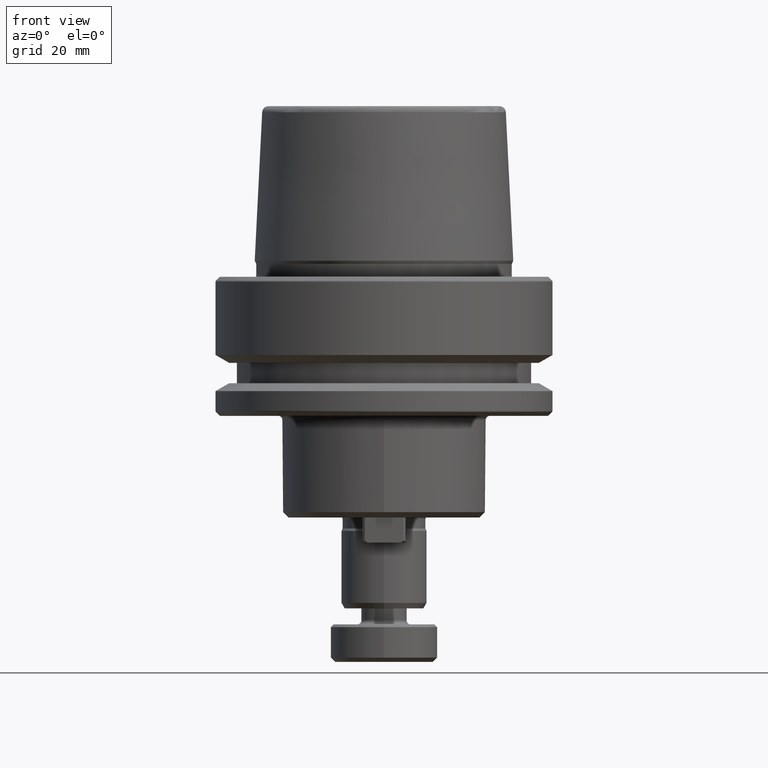
[diagram: clean part render]
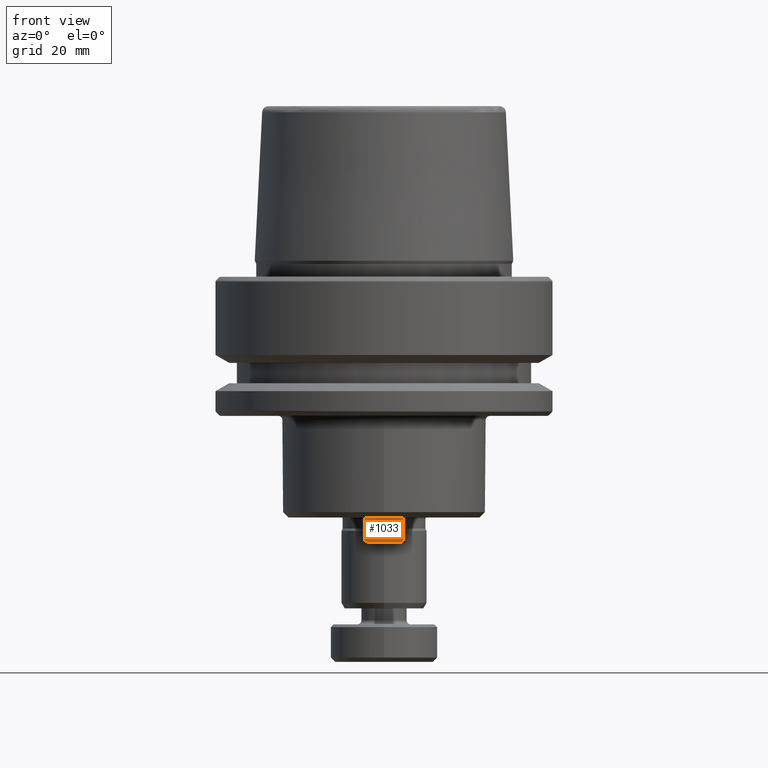
[diagram: same view with one face highlighted and labeled with its STEP entity id]
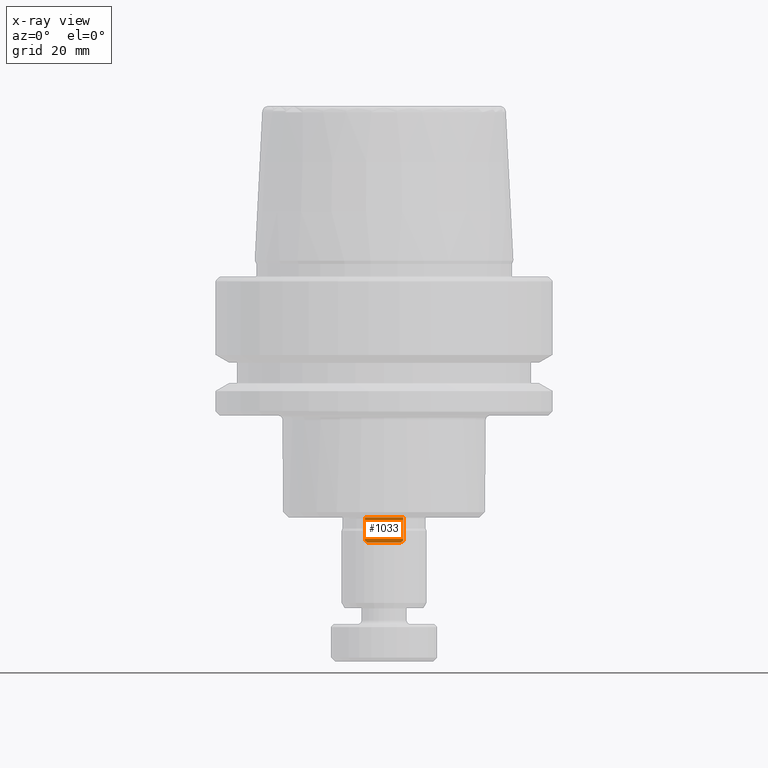
[diagram: x-ray of the same camera — body ghosted, the highlighted face saturated]
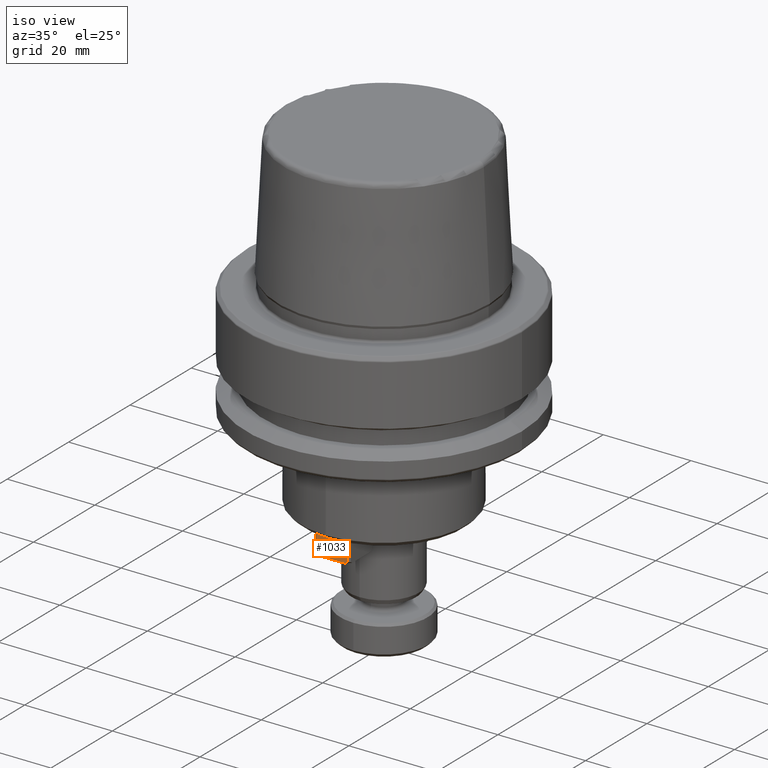
[diagram: same view with one face highlighted and labeled with its STEP entity id]
A machine part, front view. The second image highlights one B-rep face of the part: STEP entity #1033.
The next image is the same camera in x-ray: the body ghosted, the highlighted face saturated — about 0% of this face is hidden behind the body in this view.
A second angle (iso view) of the same face is appended — the face is thin or edge-on in the first view.
In plain terms, the highlighted planar face has unit normal (0, 1, 0).
Its self-contained STEP definition (entity closure, byte-faithful):
#50 = LINE ( 'NONE', #1917, #2243 ) ;
#55 = VERTEX_POINT ( 'NONE', #435 ) ;
#126 = CARTESIAN_POINT ( 'NONE',  ( -3.600000000000001400, -16.99999999999999300, -49.74999999999999300 ) ) ;
#174 = ORIENTED_EDGE ( 'NONE', *, *, #1801, .F. ) ;
#215 = VECTOR ( 'NONE', #1749, 1000.000000000000000 ) ;
#361 = VERTEX_POINT ( 'NONE', #518 ) ;
#435 = CARTESIAN_POINT ( 'NONE',  ( 3.034314575050796900, -16.99999999999999300, -49.74999999999999300 ) ) ;
#518 = CARTESIAN_POINT ( 'NONE',  ( -3.600000000000001400, -16.99999999999999300, -45.00000000000000000 ) ) ;
#552 = DIRECTION ( 'NONE',  ( 0.8164965809277280300, -1.080215520923511300E-016, 0.5773502691896228400 ) ) ;
#564 = DIRECTION ( 'NONE',  ( 0.0000000000000000000, 1.000000000000000000, 1.870988165364012400E-016 ) ) ;
#648 = CARTESIAN_POINT ( 'NONE',  ( -3.600000000000001400, -16.99999999999999300, -49.74999999999999300 ) ) ;
#731 = CARTESIAN_POINT ( 'NONE',  ( -3.034314575050797400, -16.99999999999999300, -49.74999999999999300 ) ) ;
#735 = CARTESIAN_POINT ( 'NONE',  ( -7.689543050033890400, -16.99999999999999300, -46.45825637736676600 ) ) ;
#741 = ORIENTED_EDGE ( 'NONE', *, *, #1013, .T. ) ;
#891 = ORIENTED_EDGE ( 'NONE', *, *, #1538, .T. ) ;
#896 = VECTOR ( 'NONE', #1208, 1000.000000000000000 ) ;
#927 = VERTEX_POINT ( 'NONE', #2052 ) ;
#934 = EDGE_LOOP ( 'NONE', ( #174, #741, #1796, #891, #1288, #1645 ) ) ;
#982 = CARTESIAN_POINT ( 'NONE',  ( 7.689543050033890400, -16.99999999999999300, -46.45825637736676600 ) ) ;
#988 = CARTESIAN_POINT ( 'NONE',  ( -3.600000000000001400, -16.99999999999999300, -45.00000000000000000 ) ) ;
#1013 = EDGE_CURVE ( 'NONE', #55, #927, #2224, .T. ) ;
#1033 = ADVANCED_FACE ( 'NONE', ( #2642 ), #2305, .F. ) ;
#1068 = VERTEX_POINT ( 'NONE', #1233 ) ;
#1118 = VERTEX_POINT ( 'NONE', #1475 ) ;
#1208 = DIRECTION ( 'NONE',  ( -1.000000000000000000, 0.0000000000000000000, 0.0000000000000000000 ) ) ;
#1233 = CARTESIAN_POINT ( 'NONE',  ( -3.600000000000001000, -16.99999999999999300, -49.35000000000002300 ) ) ;
#1288 = ORIENTED_EDGE ( 'NONE', *, *, #1694, .F. ) ;
#1381 = LINE ( 'NONE', #648, #215 ) ;
#1475 = CARTESIAN_POINT ( 'NONE',  ( 3.600000000000000100, -16.99999999999999300, -45.00000000000000000 ) ) ;
#1538 = EDGE_CURVE ( 'NONE', #1118, #361, #2139, .T. ) ;
#1565 = VECTOR ( 'NONE', #552, 1000.000000000000100 ) ;
#1639 = CARTESIAN_POINT ( 'NONE',  ( 3.600000000000000100, -16.99999999999999300, -49.74999999999999300 ) ) ;
#1645 = ORIENTED_EDGE ( 'NONE', *, *, #2011, .T. ) ;
#1694 = EDGE_CURVE ( 'NONE', #1068, #361, #50, .T. ) ;
#1749 = DIRECTION ( 'NONE',  ( -1.000000000000000000, 0.0000000000000000000, 0.0000000000000000000 ) ) ;
#1758 = VECTOR ( 'NONE', #1860, 1000.000000000000000 ) ;
#1796 = ORIENTED_EDGE ( 'NONE', *, *, #2752, .T. ) ;
#1801 = EDGE_CURVE ( 'NONE', #55, #2616, #1381, .T. ) ;
#1855 = VECTOR ( 'NONE', #2485, 1000.000000000000100 ) ;
#1860 = DIRECTION ( 'NONE',  ( -0.0000000000000000000, -1.870988165364012400E-016, 1.000000000000000000 ) ) ;
#1917 = CARTESIAN_POINT ( 'NONE',  ( -3.600000000000001400, -16.99999999999999300, -49.74999999999999300 ) ) ;
#2011 = EDGE_CURVE ( 'NONE', #1068, #2616, #2503, .T. ) ;
#2052 = CARTESIAN_POINT ( 'NONE',  ( 3.600000000000000100, -16.99999999999999300, -49.35000000000002300 ) ) ;
#2089 = DIRECTION ( 'NONE',  ( 0.0000000000000000000, -1.870988165364012400E-016, 1.000000000000000000 ) ) ;
#2139 = LINE ( 'NONE', #988, #896 ) ;
#2140 = DIRECTION ( 'NONE',  ( -0.0000000000000000000, -1.870988165364012400E-016, 1.000000000000000000 ) ) ;
#2224 = LINE ( 'NONE', #982, #1565 ) ;
#2243 = VECTOR ( 'NONE', #2140, 1000.000000000000000 ) ;
#2305 = PLANE ( 'NONE',  #2534 ) ;
#2404 = LINE ( 'NONE', #1639, #1758 ) ;
#2485 = DIRECTION ( 'NONE',  ( 0.8164965809277280300, 1.080215520923511300E-016, -0.5773502691896228400 ) ) ;
#2503 = LINE ( 'NONE', #735, #1855 ) ;
#2534 = AXIS2_PLACEMENT_3D ( 'NONE', #126, #564, #2089 ) ;
#2616 = VERTEX_POINT ( 'NONE', #731 ) ;
#2642 = FACE_OUTER_BOUND ( 'NONE', #934, .T. ) ;
#2752 = EDGE_CURVE ( 'NONE', #927, #1118, #2404, .T. ) ;